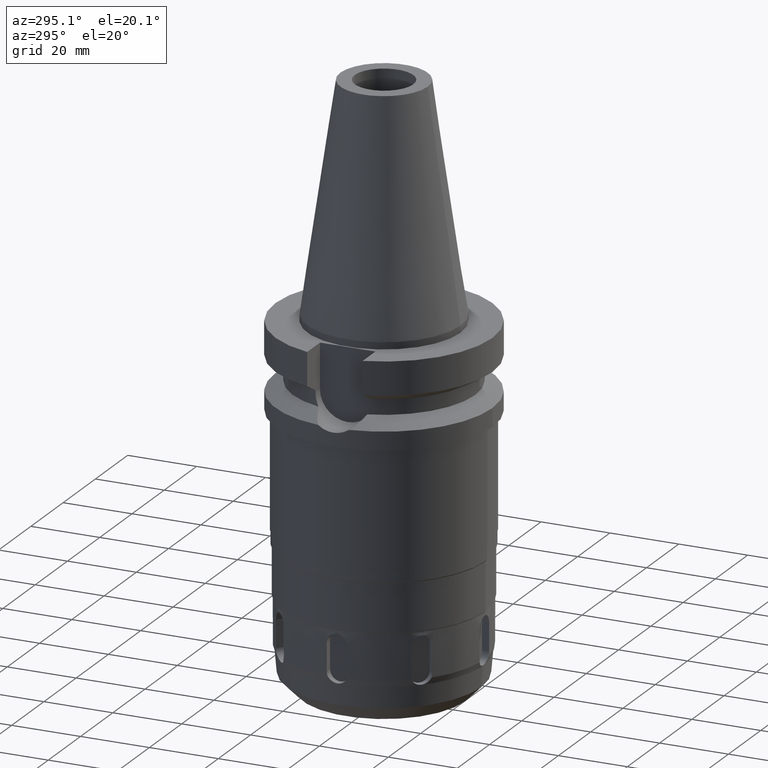
[diagram: clean part render]
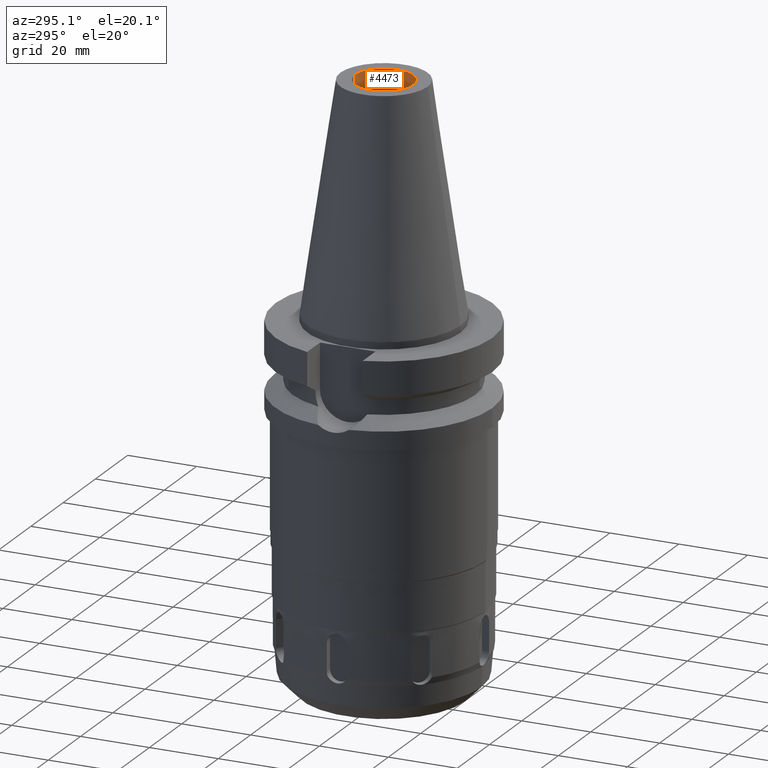
[diagram: same view with one face highlighted and labeled with its STEP entity id]
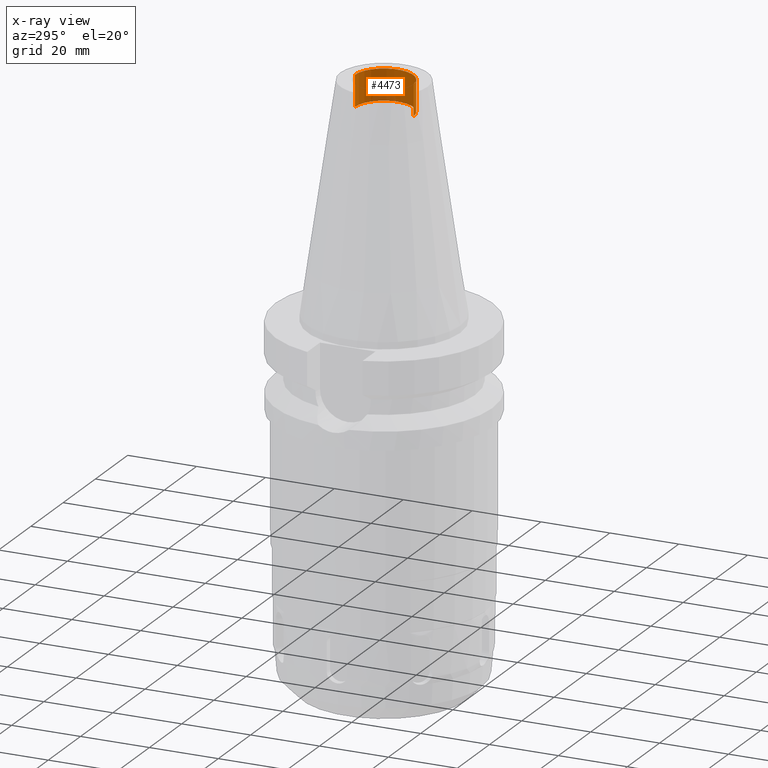
[diagram: x-ray of the same camera — body ghosted, the highlighted face saturated]
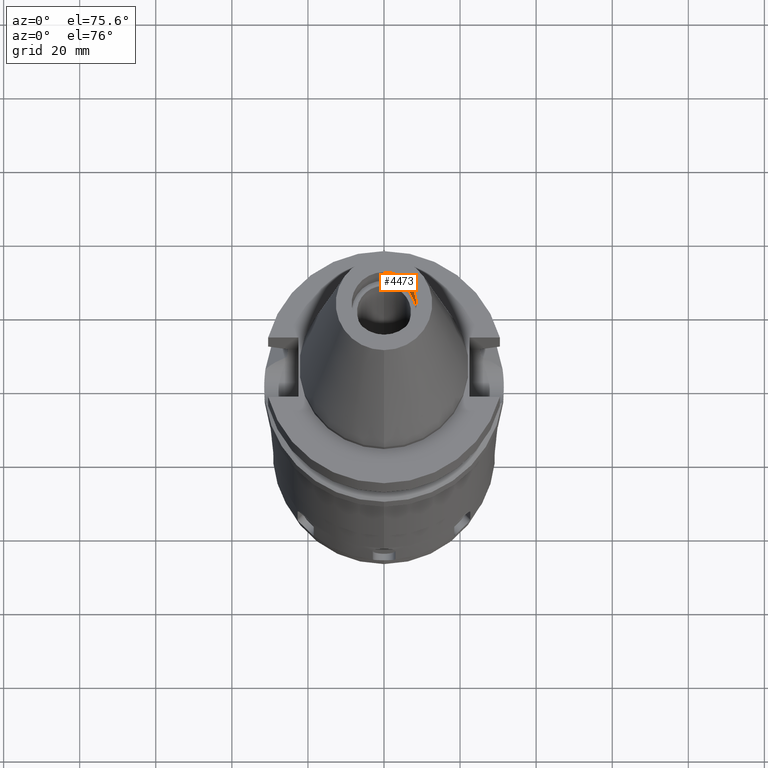
[diagram: same view with one face highlighted and labeled with its STEP entity id]
A machine part, auxiliary view. The second image highlights one B-rep face of the part: STEP entity #4473.
The next image is the same camera in x-ray: the body ghosted, the highlighted face saturated — about 7% of this face is hidden behind the body in this view.
A second angle (auxiliary view) of the same face is appended — the face is thin or edge-on in the first view.
In plain terms, the highlighted cylindrical surface (edge-blend (fillet) strip) has radius 8.5 mm, axis along (0, 0, -1).
Its self-contained STEP definition (entity closure, byte-faithful):
#34=CARTESIAN_POINT('',(0.E0,2.129905713077E-14,6.54E1));
#35=DIRECTION('',(0.E0,0.E0,1.E0));
#36=DIRECTION('',(0.E0,-1.E0,0.E0));
#37=AXIS2_PLACEMENT_3D('',#34,#35,#36);
#2361=CARTESIAN_POINT('',(0.E0,2.129905713077E-14,5.64E1));
#2362=DIRECTION('',(0.E0,0.E0,-1.E0));
#2363=DIRECTION('',(0.E0,1.E0,0.E0));
#2364=AXIS2_PLACEMENT_3D('',#2361,#2362,#2363);
#2385=DIRECTION('',(0.E0,0.E0,1.E0));
#2386=VECTOR('',#2385,9.E0);
#2387=CARTESIAN_POINT('',(0.E0,-8.5E0,5.64E1));
#2388=LINE('',#2387,#2386);
#2392=DIRECTION('',(0.E0,0.E0,1.E0));
#2393=VECTOR('',#2392,9.E0);
#2394=CARTESIAN_POINT('',(0.E0,8.5E0,5.64E1));
#2395=LINE('',#2394,#2393);
#2449=CARTESIAN_POINT('',(0.E0,-8.5E0,6.54E1));
#2450=CARTESIAN_POINT('',(0.E0,8.5E0,6.54E1));
#2451=VERTEX_POINT('',#2449);
#2452=VERTEX_POINT('',#2450);
#2453=CARTESIAN_POINT('',(0.E0,8.5E0,5.64E1));
#2454=VERTEX_POINT('',#2453);
#2455=CARTESIAN_POINT('',(0.E0,-8.5E0,5.64E1));
#2456=VERTEX_POINT('',#2455);
#4462=CARTESIAN_POINT('',(0.E0,2.129905713077E-14,7.392E1));
#4463=DIRECTION('',(0.E0,0.E0,-1.E0));
#4464=DIRECTION('',(0.E0,-1.E0,0.E0));
#4465=AXIS2_PLACEMENT_3D('',#4462,#4463,#4464);
#4466=CYLINDRICAL_SURFACE('',#4465,8.5E0);
#4467=ORIENTED_EDGE('',*,*,#4453,.T.);
#4468=ORIENTED_EDGE('',*,*,#2807,.F.);
#4469=ORIENTED_EDGE('',*,*,#4456,.F.);
#4470=ORIENTED_EDGE('',*,*,#4439,.F.);
#4471=EDGE_LOOP('',(#4467,#4468,#4469,#4470));
#4472=FACE_OUTER_BOUND('',#4471,.F.);
#38=CIRCLE('',#37,8.5E0);
#2365=CIRCLE('',#2364,8.5E0);
#2807=EDGE_CURVE('',#2451,#2452,#38,.T.);
#4439=EDGE_CURVE('',#2454,#2456,#2365,.T.);
#4453=EDGE_CURVE('',#2454,#2452,#2395,.T.);
#4456=EDGE_CURVE('',#2456,#2451,#2388,.T.);
#4473=ADVANCED_FACE('',(#4472),#4466,.F.);